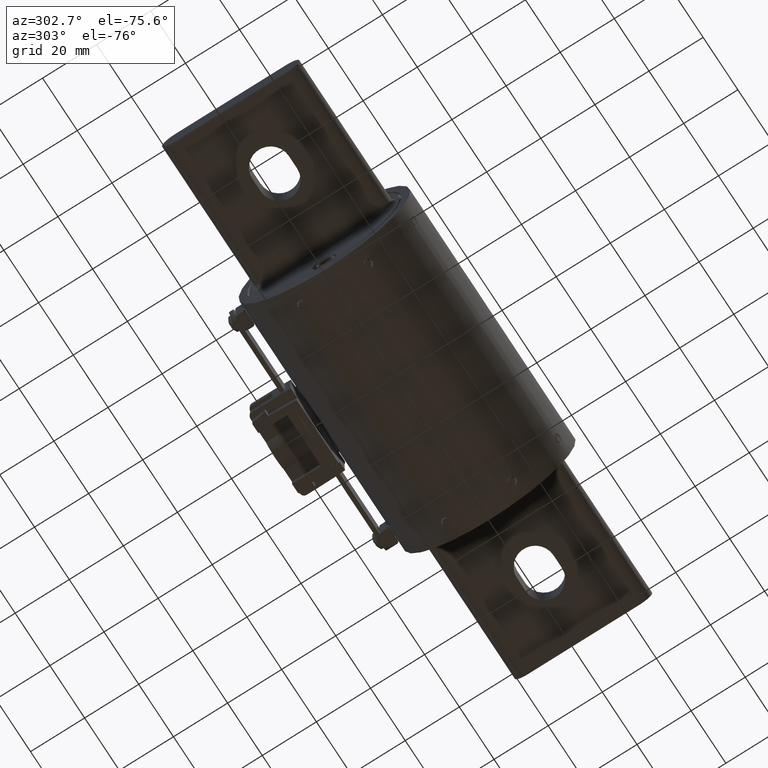
[diagram: clean part render]
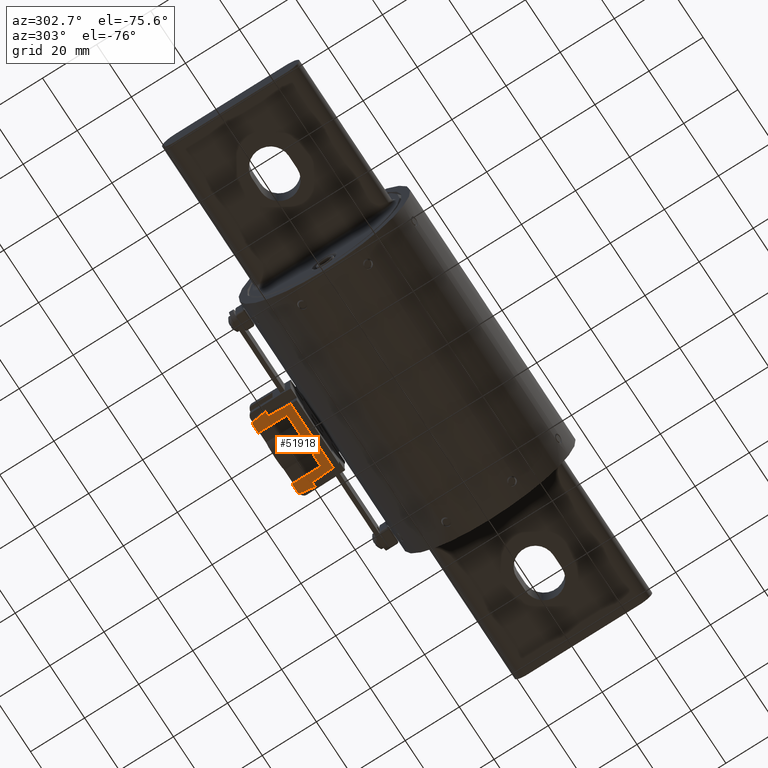
[diagram: same view with one face highlighted and labeled with its STEP entity id]
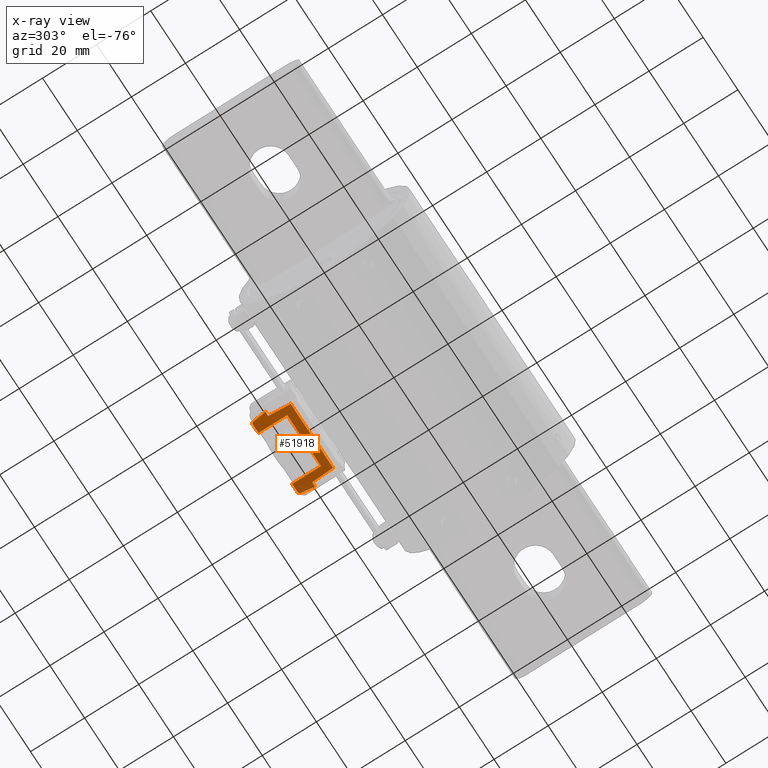
[diagram: x-ray of the same camera — body ghosted, the highlighted face saturated]
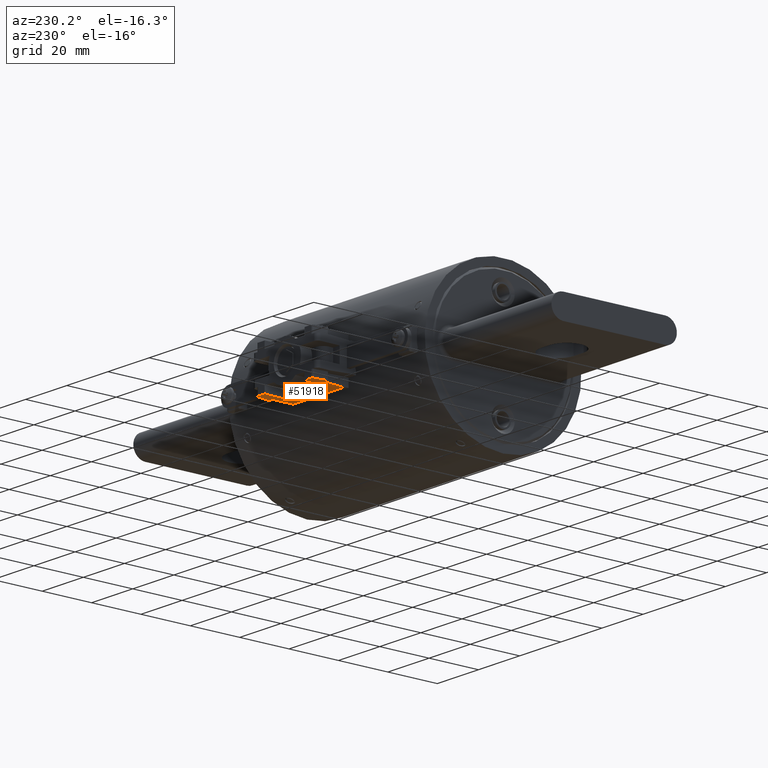
[diagram: same view with one face highlighted and labeled with its STEP entity id]
A machine part, auxiliary view. The second image highlights one B-rep face of the part: STEP entity #51918.
The next image is the same camera in x-ray: the body ghosted, the highlighted face saturated — about 0% of this face is hidden behind the body in this view.
A second angle (auxiliary view) of the same face is appended — the face is thin or edge-on in the first view.
In plain terms, the highlighted planar face has unit normal (0, -0.0175, 0.9998).
Its self-contained STEP definition (entity closure, byte-faithful):
#5 = VECTOR ( 'NONE', #79687, 39.37007874015748100 ) ;
#1389 = VERTEX_POINT ( 'NONE', #53314 ) ;
#1982 = VERTEX_POINT ( 'NONE', #109796 ) ;
#2696 = ORIENTED_EDGE ( 'NONE', *, *, #90997, .F. ) ;
#4044 = CARTESIAN_POINT ( 'NONE',  ( 2.495000000000000100, 1.385773281310193100, -0.3500000000000009800 ) ) ;
#5656 = EDGE_CURVE ( 'NONE', #135319, #99265, #62230, .T. ) ;
#6071 = LINE ( 'NONE', #132979, #34868 ) ;
#7053 = EDGE_CURVE ( 'NONE', #108253, #49250, #127446, .T. ) ;
#8687 = ORIENTED_EDGE ( 'NONE', *, *, #62984, .T. ) ;
#10229 = VECTOR ( 'NONE', #124422, 39.37007874015748100 ) ;
#11417 = CARTESIAN_POINT ( 'NONE',  ( 2.397188730156159900, 1.920773281310192800, -0.3406615402634045100 ) ) ;
#11453 = CARTESIAN_POINT ( 'NONE',  ( 1.492499999999999900, 1.500773281310192800, -0.3479926675332559700 ) ) ;
#12811 = EDGE_CURVE ( 'NONE', #49250, #19321, #135145, .T. ) ;
#14804 = CARTESIAN_POINT ( 'NONE',  ( 2.495000000000000100, 1.700773281310193000, -0.3445016545476123900 ) ) ;
#14978 = DIRECTION ( 'NONE',  ( 0.0000000000000000000, -0.9998476951563912700, -0.01745240643728360200 ) ) ;
#15237 = LINE ( 'NONE', #48777, #72932 ) ;
#15915 = CARTESIAN_POINT ( 'NONE',  ( 2.495000000000000100, 1.920773281310193000, -0.3406615402634045100 ) ) ;
#17509 = CARTESIAN_POINT ( 'NONE',  ( 1.368497585769013100, 1.920773281310193000, -0.3406615402634045100 ) ) ;
#19321 = VERTEX_POINT ( 'NONE', #75791 ) ;
#19553 = EDGE_CURVE ( 'NONE', #99265, #30155, #6071, .T. ) ;
#20604 = EDGE_CURVE ( 'NONE', #19321, #30155, #15237, .T. ) ;
#20814 = DIRECTION ( 'NONE',  ( -0.1391523146935431100, -0.9901201667701141600, -0.01728261179771005400 ) ) ;
#23272 = VECTOR ( 'NONE', #83316, 39.37007874015748100 ) ;
#24179 = ORIENTED_EDGE ( 'NONE', *, *, #89544, .T. ) ;
#27550 = LINE ( 'NONE', #67497, #53033 ) ;
#30155 = VERTEX_POINT ( 'NONE', #49912 ) ;
#30691 = VECTOR ( 'NONE', #20814, 39.37007874015748900 ) ;
#31560 = DIRECTION ( 'NONE',  ( 0.1391523146935431100, -0.9901201667701141600, -0.01728261179771005400 ) ) ;
#32686 = VECTOR ( 'NONE', #100127, 39.37007874015748100 ) ;
#33177 = CARTESIAN_POINT ( 'NONE',  ( 2.409027343063289400, 1.910482132115886500, -0.3408411729407770900 ) ) ;
#33529 = ORIENTED_EDGE ( 'NONE', *, *, #20604, .F. ) ;
#34868 = VECTOR ( 'NONE', #100807, 39.37007874015748100 ) ;
#36131 = LINE ( 'NONE', #140104, #119380 ) ;
#42290 = DIRECTION ( 'NONE',  ( 0.0000000000000000000, -0.9998476951563912700, -0.01745240643728360200 ) ) ;
#43130 = CARTESIAN_POINT ( 'NONE',  ( 2.381502414230987100, 1.920773281310193000, -0.3406615402634045100 ) ) ;
#43162 = VECTOR ( 'NONE', #42290, 39.37007874015748100 ) ;
#46938 = CARTESIAN_POINT ( 'NONE',  ( 2.438500000000000300, 1.700773281310193000, -0.3445016545476124500 ) ) ;
#47071 = LINE ( 'NONE', #98663, #76004 ) ;
#48777 = CARTESIAN_POINT ( 'NONE',  ( 1.397023207909386300, 1.328248282608262400, -0.3510041025873388300 ) ) ;
#49250 = VERTEX_POINT ( 'NONE', #81578 ) ;
#49912 = CARTESIAN_POINT ( 'NONE',  ( 1.394008450474158300, 1.385773281310193100, -0.3499999999999999800 ) ) ;
#51918 = ADVANCED_FACE ( 'NONE', ( #114958 ), #90313, .F. ) ;
#53033 = VECTOR ( 'NONE', #88415, 39.37007874015748100 ) ;
#53108 = ORIENTED_EDGE ( 'NONE', *, *, #66160, .T. ) ;
#53314 = CARTESIAN_POINT ( 'NONE',  ( 2.381502414230987100, 1.920773281310193000, -0.3406615402634045100 ) ) ;
#56031 = CARTESIAN_POINT ( 'NONE',  ( 2.495000000000000100, 1.920773281310193000, -0.3406615402634045100 ) ) ;
#61469 = CARTESIAN_POINT ( 'NONE',  ( 2.495000000000000100, 1.700773281310193000, -0.3445016545476123900 ) ) ;
#62230 = LINE ( 'NONE', #62535, #135058 ) ;
#62535 = CARTESIAN_POINT ( 'NONE',  ( 2.356372185289855800, 1.393036244351578000, -0.3498732245085423600 ) ) ;
#62638 = ORIENTED_EDGE ( 'NONE', *, *, #80190, .F. ) ;
#62878 = VERTEX_POINT ( 'NONE', #139833 ) ;
#62984 = EDGE_CURVE ( 'NONE', #1389, #1982, #97135, .T. ) ;
#66160 = EDGE_CURVE ( 'NONE', #86345, #82978, #126296, .T. ) ;
#67380 = ORIENTED_EDGE ( 'NONE', *, *, #83006, .F. ) ;
#67497 = CARTESIAN_POINT ( 'NONE',  ( 2.257500000000000300, 1.385773281310193100, -0.3500000000000009800 ) ) ;
#67875 = LINE ( 'NONE', #15915, #10229 ) ;
#72932 = VECTOR ( 'NONE', #124167, 39.37007874015748900 ) ;
#75791 = CARTESIAN_POINT ( 'NONE',  ( 1.377499999999999900, 1.700773281310193000, -0.3445016545476123900 ) ) ;
#76004 = VECTOR ( 'NONE', #109558, 39.37007874015748100 ) ;
#79687 = DIRECTION ( 'NONE',  ( -1.000000000000000000, 0.0000000000000000000, 0.0000000000000000000 ) ) ;
#79869 = DIRECTION ( 'NONE',  ( 0.0000000000000000000, -0.01745240643728360200, 0.9998476951563912700 ) ) ;
#80190 = EDGE_CURVE ( 'NONE', #86345, #108768, #67875, .T. ) ;
#80344 = CARTESIAN_POINT ( 'NONE',  ( 2.355991549525841700, 1.385773281310193100, -0.3499999999999999800 ) ) ;
#81036 = ORIENTED_EDGE ( 'NONE', *, *, #126301, .T. ) ;
#81578 = CARTESIAN_POINT ( 'NONE',  ( 1.311499999999999900, 1.700773281310193000, -0.3445016545476123900 ) ) ;
#82309 = CARTESIAN_POINT ( 'NONE',  ( 1.338789543706766100, 1.894948474338995000, -0.3411123139458454000 ) ) ;
#82449 = CARTESIAN_POINT ( 'NONE',  ( 1.352811269843840600, 1.920773281310192800, -0.3406615402634044500 ) ) ;
#82453 = DIRECTION ( 'NONE',  ( -0.05232800705137966700, -0.9984778551437665200, -0.01742849579092196600 ) ) ;
#82978 = VERTEX_POINT ( 'NONE', #11453 ) ;
#83006 = EDGE_CURVE ( 'NONE', #98540, #82978, #47071, .T. ) ;
#83316 = DIRECTION ( 'NONE',  ( 1.000000000000000000, 0.0000000000000000000, 0.0000000000000000000 ) ) ;
#83786 = AXIS2_PLACEMENT_3D ( 'NONE', #4044, #79869, #14978 ) ;
#86023 =( BOUNDED_CURVE ( )  B_SPLINE_CURVE ( 3, ( #136423, #125607, #82449, #17509 ),
 .UNSPECIFIED., .F., .F. ) 
 B_SPLINE_CURVE_WITH_KNOTS ( ( 4, 4 ),
 ( 4.852015320544241600, 6.283185307179586200 ),
 .UNSPECIFIED. ) 
 CURVE ( )  GEOMETRIC_REPRESENTATION_ITEM ( )  RATIONAL_B_SPLINE_CURVE ( ( 1.000000000000000000, 0.8364730534818491900, 0.8364730534818491900, 1.000000000000000000 ) ) 
 REPRESENTATION_ITEM ( '' )  );
#86345 = VERTEX_POINT ( 'NONE', #124327 ) ;
#87967 = ORIENTED_EDGE ( 'NONE', *, *, #12811, .F. ) ;
#88415 = DIRECTION ( 'NONE',  ( 0.0000000000000000000, -0.9998476951563912700, -0.01745240643728360200 ) ) ;
#89544 = EDGE_CURVE ( 'NONE', #1982, #130440, #36131, .T. ) ;
#90313 = PLANE ( 'NONE',  #83786 ) ;
#90997 = EDGE_CURVE ( 'NONE', #1389, #62878, #115848, .T. ) ;
#91858 = CARTESIAN_POINT ( 'NONE',  ( 2.372500000000000100, 1.700773281310193000, -0.3445016545476124500 ) ) ;
#96679 = CARTESIAN_POINT ( 'NONE',  ( 1.291003404810633100, 1.554932428487806300, -0.3470473161028138100 ) ) ;
#97135 =( BOUNDED_CURVE ( )  B_SPLINE_CURVE ( 3, ( #43130, #11417, #33177, #109058 ),
 .UNSPECIFIED., .F., .F. ) 
 B_SPLINE_CURVE_WITH_KNOTS ( ( 4, 4 ),
 ( 3.141592653589792700, 4.572762640225137800 ),
 .UNSPECIFIED. ) 
 CURVE ( )  GEOMETRIC_REPRESENTATION_ITEM ( )  RATIONAL_B_SPLINE_CURVE ( ( 1.000000000000000000, 0.8364730534818490800, 0.8364730534818490800, 1.000000000000000000 ) ) 
 REPRESENTATION_ITEM ( '' )  );
#98540 = VERTEX_POINT ( 'NONE', #99137 ) ;
#98663 = CARTESIAN_POINT ( 'NONE',  ( 2.495000000000000100, 1.500773281310192800, -0.3479926675332559700 ) ) ;
#99137 = CARTESIAN_POINT ( 'NONE',  ( 2.257500000000000300, 1.500773281310192800, -0.3479926675332559700 ) ) ;
#99265 = VERTEX_POINT ( 'NONE', #80344 ) ;
#100127 = DIRECTION ( 'NONE',  ( -1.000000000000000000, -0.0000000000000000000, -0.0000000000000000000 ) ) ;
#100807 = DIRECTION ( 'NONE',  ( -1.000000000000000000, -0.0000000000000000000, -0.0000000000000000000 ) ) ;
#104573 = ORIENTED_EDGE ( 'NONE', *, *, #19553, .T. ) ;
#107260 = CARTESIAN_POINT ( 'NONE',  ( 1.492499999999999900, 1.385773281310193100, -0.3500000000000009800 ) ) ;
#108253 = VERTEX_POINT ( 'NONE', #82309 ) ;
#108768 = VERTEX_POINT ( 'NONE', #122495 ) ;
#108785 = ORIENTED_EDGE ( 'NONE', *, *, #119780, .F. ) ;
#109058 = CARTESIAN_POINT ( 'NONE',  ( 2.411210456293233900, 1.894948474338995000, -0.3411123139458455100 ) ) ;
#109558 = DIRECTION ( 'NONE',  ( -1.000000000000000000, 0.0000000000000000000, 0.0000000000000000000 ) ) ;
#109796 = CARTESIAN_POINT ( 'NONE',  ( 2.411210456293233900, 1.894948474338995000, -0.3411123139458455100 ) ) ;
#112315 = EDGE_LOOP ( 'NONE', ( #62638, #53108, #67380, #108785, #2696, #8687, #24179, #81036, #117180, #104573, #33529, #87967, #130594, #135305 ) ) ;
#114958 = FACE_OUTER_BOUND ( 'NONE', #112315, .T. ) ;
#115333 = LINE ( 'NONE', #14804, #5 ) ;
#115848 = LINE ( 'NONE', #56031, #32686 ) ;
#117180 = ORIENTED_EDGE ( 'NONE', *, *, #5656, .T. ) ;
#119380 = VECTOR ( 'NONE', #31560, 39.37007874015748900 ) ;
#119780 = EDGE_CURVE ( 'NONE', #62878, #98540, #27550, .T. ) ;
#122495 = CARTESIAN_POINT ( 'NONE',  ( 1.368497585769013100, 1.920773281310193000, -0.3406615402634045100 ) ) ;
#124167 = DIRECTION ( 'NONE',  ( 0.05232800705137966700, -0.9984778551437665200, -0.01742849579092196600 ) ) ;
#124327 = CARTESIAN_POINT ( 'NONE',  ( 1.492499999999999900, 1.920773281310192800, -0.3406615402634045100 ) ) ;
#124422 = DIRECTION ( 'NONE',  ( -1.000000000000000000, -0.0000000000000000000, -0.0000000000000000000 ) ) ;
#125607 = CARTESIAN_POINT ( 'NONE',  ( 1.340972656936711300, 1.910482132115885600, -0.3408411729407770400 ) ) ;
#126296 = LINE ( 'NONE', #107260, #43162 ) ;
#126301 = EDGE_CURVE ( 'NONE', #130440, #135319, #115333, .T. ) ;
#127446 = LINE ( 'NONE', #96679, #30691 ) ;
#128355 = EDGE_CURVE ( 'NONE', #108253, #108768, #86023, .T. ) ;
#130440 = VERTEX_POINT ( 'NONE', #46938 ) ;
#130594 = ORIENTED_EDGE ( 'NONE', *, *, #7053, .F. ) ;
#132979 = CARTESIAN_POINT ( 'NONE',  ( 2.495000000000000100, 1.385773281310193100, -0.3500000000000009800 ) ) ;
#135058 = VECTOR ( 'NONE', #82453, 39.37007874015748900 ) ;
#135145 = LINE ( 'NONE', #61469, #23272 ) ;
#135305 = ORIENTED_EDGE ( 'NONE', *, *, #128355, .T. ) ;
#135319 = VERTEX_POINT ( 'NONE', #91858 ) ;
#136423 = CARTESIAN_POINT ( 'NONE',  ( 1.338789543706766100, 1.894948474338995000, -0.3411123139458454000 ) ) ;
#139833 = CARTESIAN_POINT ( 'NONE',  ( 2.257500000000000300, 1.920773281310193000, -0.3406615402634045100 ) ) ;
#140104 = CARTESIAN_POINT ( 'NONE',  ( 2.483007169878234800, 1.384088312329591500, -0.3500294112429594400 ) ) ;